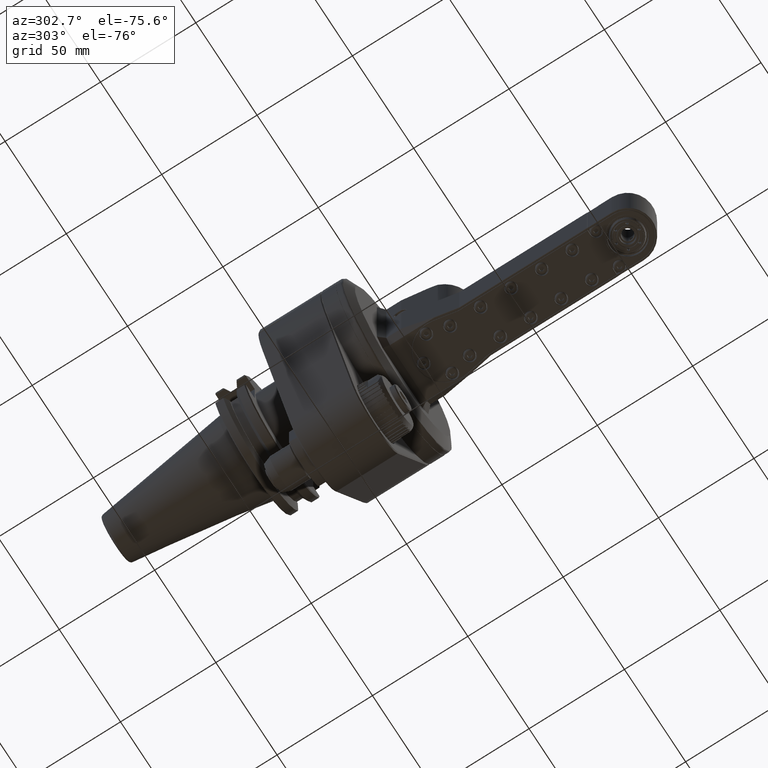
[diagram: clean part render]
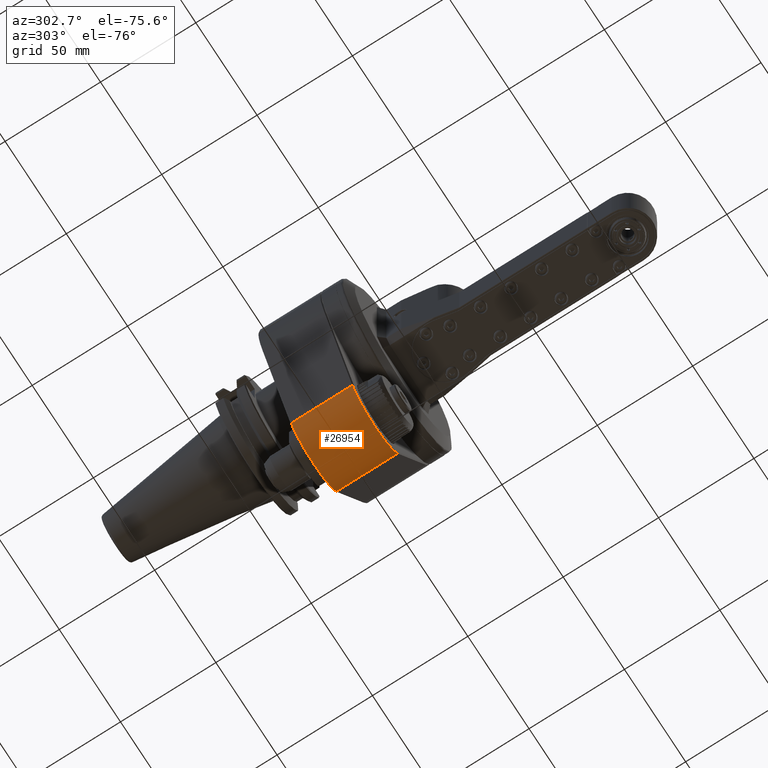
[diagram: same view with one face highlighted and labeled with its STEP entity id]
A machine part, auxiliary view. The second image highlights one B-rep face of the part: STEP entity #26954.
In plain terms, the highlighted cylindrical surface (partial cylindrical patch) has radius 20 mm, axis along (0, 1, 0).
Its self-contained STEP definition (entity closure, byte-faithful):
#3699=LINE('',#49211,#6078);
#3704=LINE('',#49222,#6083);
#6078=VECTOR('',#36731,1.25983053969606);
#6083=VECTOR('',#36746,1.25983053673898);
#7421=CIRCLE('',#29608,0.78740157480315);
#7422=CIRCLE('',#29613,0.78740157480315);
#8787=FACE_OUTER_BOUND('',#10487,.T.);
#10487=EDGE_LOOP('',(#24237,#24238,#24239,#24240));
#13375=VERTEX_POINT('',#49197);
#13376=VERTEX_POINT('',#49201);
#13377=VERTEX_POINT('',#49207);
#13379=VERTEX_POINT('',#49216);
#17071=EDGE_CURVE('',#13376,#13375,#7421,.T.);
#17076=EDGE_CURVE('',#13376,#13377,#3699,.T.);
#17079=EDGE_CURVE('',#13379,#13377,#7422,.T.);
#17082=EDGE_CURVE('',#13379,#13375,#3704,.T.);
#24237=ORIENTED_EDGE('',*,*,#17079,.T.);
#24238=ORIENTED_EDGE('',*,*,#17076,.F.);
#24239=ORIENTED_EDGE('',*,*,#17071,.T.);
#24240=ORIENTED_EDGE('',*,*,#17082,.F.);
#25617=CYLINDRICAL_SURFACE('',#29619,0.78740157480315);
#26954=ADVANCED_FACE('',(#8787),#25617,.T.);
#29608=AXIS2_PLACEMENT_3D('',#49202,#36721,#36722);
#29613=AXIS2_PLACEMENT_3D('',#49217,#36738,#36739);
#29619=AXIS2_PLACEMENT_3D('',#49227,#36754,#36755);
#36721=DIRECTION('center_axis',(0.,1.,0.));
#36722=DIRECTION('ref_axis',(0.,0.,-1.));
#36731=DIRECTION('',(-1.323398429703E-13,1.,5.506758566547E-14));
#36738=DIRECTION('center_axis',(0.,-1.,0.));
#36739=DIRECTION('ref_axis',(0.,0.,-1.));
#36746=DIRECTION('',(-5.231420650501E-13,-1.,-2.184939694437E-13));
#36754=DIRECTION('center_axis',(0.,1.,0.));
#36755=DIRECTION('ref_axis',(1.,0.,0.));
#49197=CARTESIAN_POINT('',(-0.726832228347072,0.0196909747668068,-2.86190187708791));
#49201=CARTESIAN_POINT('',(0.726832228253546,0.0196909748290434,-2.86190187737921));
#49202=CARTESIAN_POINT('Origin',(-1.29380281609843E-15,0.019696886934185,
-2.55905511811024));
#49207=CARTESIAN_POINT('',(0.726832221096048,1.27952164231625,-2.86190187439692));
#49211=CARTESIAN_POINT('',(0.726832223777559,0.0196912896276811,-2.86190187551417));
#49216=CARTESIAN_POINT('',(-0.726832221277921,1.27952164214748,-2.86190187414236));
#49217=CARTESIAN_POINT('Origin',(-2.44773540862244E-15,1.27951571149094,
-2.55905511811024));
#49222=CARTESIAN_POINT('',(-0.726832223892913,1.27952182463346,-2.86190187523189));
#49227=CARTESIAN_POINT('Origin',(0.,0.,-2.55905511811024));